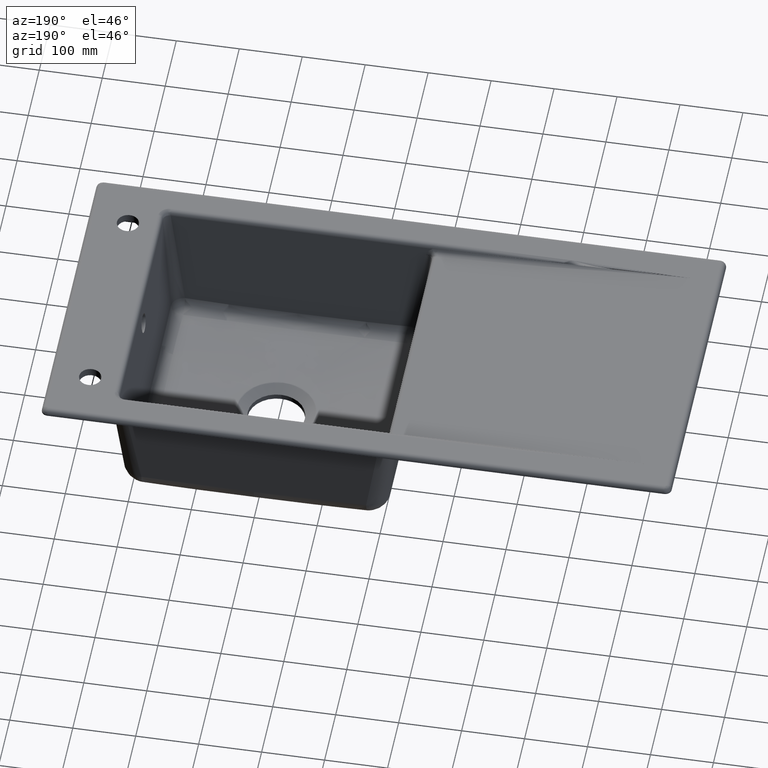
[diagram: clean part render]
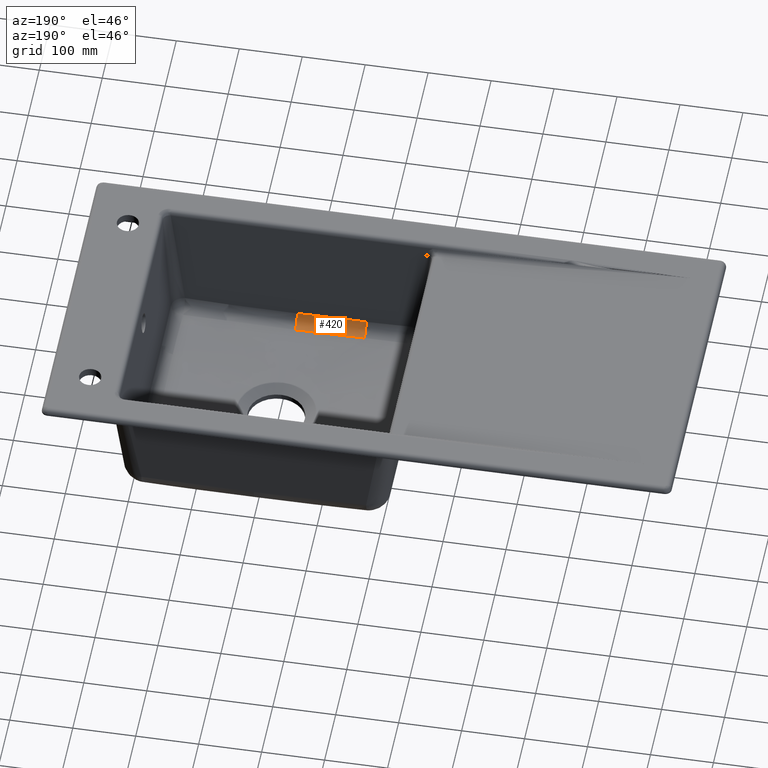
[diagram: same view with one face highlighted and labeled with its STEP entity id]
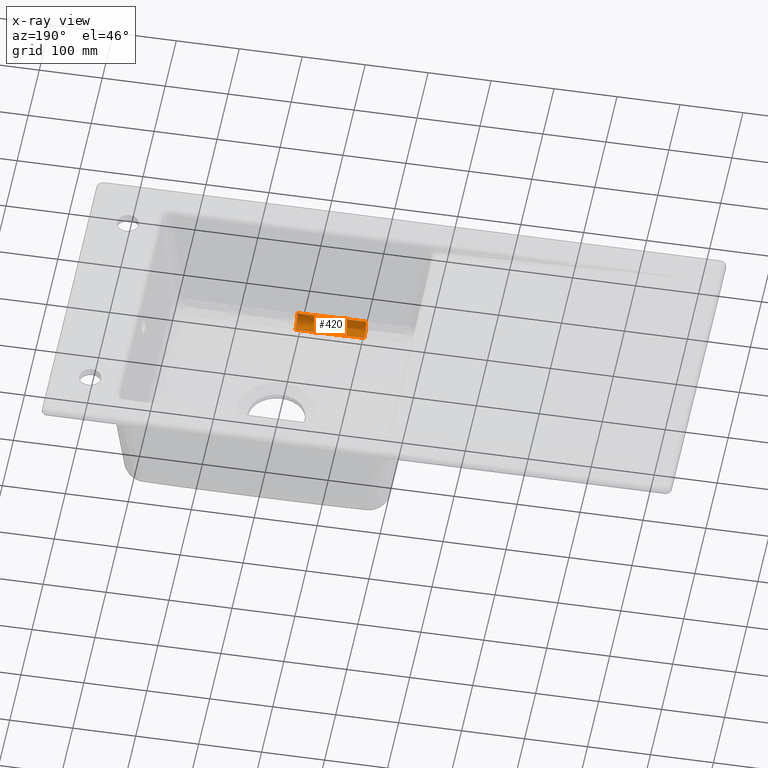
[diagram: x-ray of the same camera — body ghosted, the highlighted face saturated]
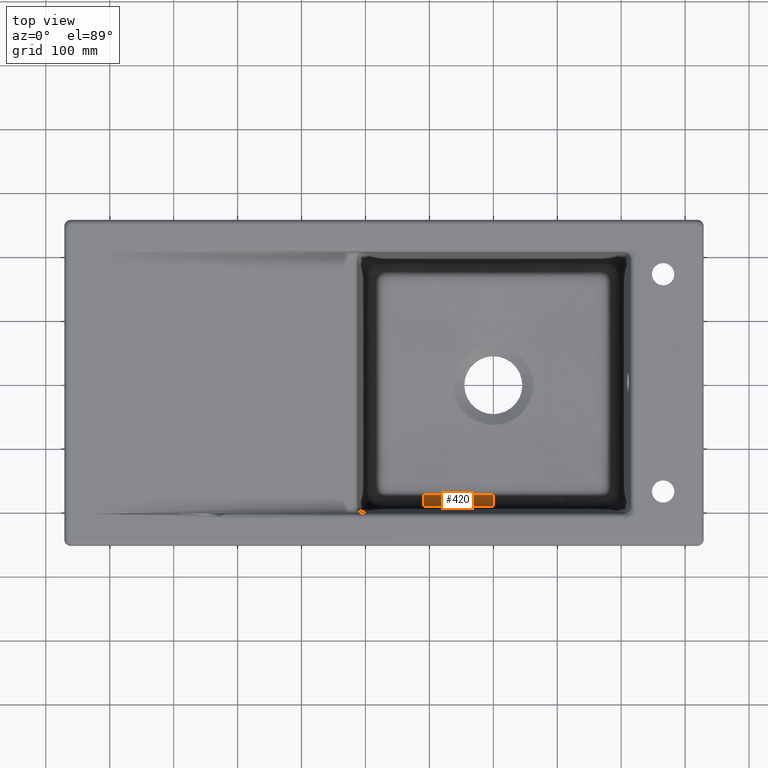
[diagram: same view with one face highlighted and labeled with its STEP entity id]
A machine part, auxiliary view. The second image highlights one B-rep face of the part: STEP entity #420.
The next image is the same camera in x-ray: the body ghosted, the highlighted face saturated — about 0% of this face is hidden behind the body in this view.
A second angle (top view) of the same face is appended — the face is thin or edge-on in the first view.
In plain terms, the highlighted face is a freeform B-spline surface patch.
Its self-contained STEP definition (entity closure, byte-faithful):
#111=(
BOUNDED_CURVE()
B_SPLINE_CURVE(2,(#17884,#17885,#17886),.UNSPECIFIED.,.F.,.F.)
B_SPLINE_CURVE_WITH_KNOTS((3,3),(0.,1.),.UNSPECIFIED.)
CURVE()
GEOMETRIC_REPRESENTATION_ITEM()
RATIONAL_B_SPLINE_CURVE((1.,0.770891270915629,1.))
REPRESENTATION_ITEM('')
);
#112=(
BOUNDED_CURVE()
B_SPLINE_CURVE(2,(#17976,#17977,#17978),.UNSPECIFIED.,.F.,.F.)
B_SPLINE_CURVE_WITH_KNOTS((3,3),(0.,1.),.UNSPECIFIED.)
CURVE()
GEOMETRIC_REPRESENTATION_ITEM()
RATIONAL_B_SPLINE_CURVE((1.,0.762222741133685,1.))
REPRESENTATION_ITEM('')
);
#156=(
BOUNDED_SURFACE()
B_SPLINE_SURFACE(3,2,((#17979,#17980,#17981),(#17982,#17983,#17984),(#17985,
#17986,#17987),(#17988,#17989,#17990),(#17991,#17992,#17993),(#17994,#17995,
#17996),(#17997,#17998,#17999),(#18000,#18001,#18002),(#18003,#18004,#18005),
(#18006,#18007,#18008)),.UNSPECIFIED.,.F.,.F.,.F.)
B_SPLINE_SURFACE_WITH_KNOTS((4,2,2,2,4),(3,3),(0.,0.5,0.75,0.875,1.),(0.,
1.),.UNSPECIFIED.)
GEOMETRIC_REPRESENTATION_ITEM()
RATIONAL_B_SPLINE_SURFACE(((1.,0.762222741133685,1.),(1.,0.762170805756783,
1.),(1.,0.762953594875179,1.),(1.,0.765395383301167,1.),(1.,0.766404312278564,
1.),(1.,0.768040028583703,1.),(1.,0.768605045687652,1.),(1.,0.769742200183421,
1.),(1.,0.770314258682702,1.),(1.,0.770874282847564,1.)))
REPRESENTATION_ITEM('')
SURFACE()
);
#420=ADVANCED_FACE('',(#658),#156,.F.);
#658=FACE_OUTER_BOUND('',#863,.T.);
#863=EDGE_LOOP('',(#1868,#1869,#1870,#1871));
#1198=B_SPLINE_CURVE_WITH_KNOTS('',3,(#16471,#16472,#16473,#16474,#16475,
#16476,#16477,#16478,#16479,#16480,#16481,#16482,#16483,#16484),
 .UNSPECIFIED.,.F.,.F.,(4,2,2,2,2,2,4),(0.,0.250000000000001,0.375000000000001,
0.437500000000001,0.468750000000001,0.500000000000001,1.),.UNSPECIFIED.);
#1210=B_SPLINE_CURVE_WITH_KNOTS('',3,(#17965,#17966,#17967,#17968,#17969,
#17970,#17971,#17972,#17973,#17974),.UNSPECIFIED.,.F.,.F.,(4,2,2,2,4),(0.,
0.124991619123339,0.249992816391434,0.499995210927623,1.),.UNSPECIFIED.);
#1868=ORIENTED_EDGE('',*,*,#2940,.F.);
#1869=ORIENTED_EDGE('',*,*,#2941,.T.);
#1870=ORIENTED_EDGE('',*,*,#2942,.T.);
#1871=ORIENTED_EDGE('',*,*,#2922,.F.);
#2509=VERTEX_POINT('',#16061);
#2512=VERTEX_POINT('',#16436);
#2519=VERTEX_POINT('',#17883);
#2520=VERTEX_POINT('',#17975);
#2922=EDGE_CURVE('',#2509,#2512,#1198,.T.);
#2940=EDGE_CURVE('',#2519,#2509,#111,.T.);
#2941=EDGE_CURVE('',#2519,#2520,#1210,.T.);
#2942=EDGE_CURVE('',#2520,#2512,#112,.T.);
#16061=CARTESIAN_POINT('',(-109.362211473929,-171.802772814069,-193.232335720157));
#16436=CARTESIAN_POINT('',(-3.03444743359847E-7,-171.219575415851,-193.805016417305));
#16471=CARTESIAN_POINT('',(-109.36172380389,-171.802246613298,-193.232277846092));
#16472=CARTESIAN_POINT('',(-99.1108620484148,-171.714633403856,-193.342564651983));
#16473=CARTESIAN_POINT('',(-89.5736461433218,-171.632894239048,-193.427975375961));
#16474=CARTESIAN_POINT('',(-76.1063011582472,-171.525313937772,-193.531625879869));
#16475=CARTESIAN_POINT('',(-71.7046535722678,-171.49160480548,-193.56242867592));
#16476=CARTESIAN_POINT('',(-65.2280649636331,-171.44508603395,-193.603750952713));
#16477=CARTESIAN_POINT('',(-63.0901881466911,-171.430260809346,-193.616709054064));
#16478=CARTESIAN_POINT('',(-59.9142323907079,-171.409206402015,-193.634994247608));
#16479=CARTESIAN_POINT('',(-58.8607240033125,-171.402385905498,-193.640897181396));
#16480=CARTESIAN_POINT('',(-56.7638942767562,-171.389171876352,-193.652329177969));
#16481=CARTESIAN_POINT('',(-55.7591431873256,-171.383007278351,-193.657659614992));
#16482=CARTESIAN_POINT('',(-37.4527431842186,-171.274349765386,-193.751931859781));
#16483=CARTESIAN_POINT('',(-19.3383049856921,-171.21958314523,-193.805016421753));
#16484=CARTESIAN_POINT('',(3.17644880286255E-26,-171.219575415851,-193.805016417305));
#17883=CARTESIAN_POINT('',(-109.165719874772,-189.682379415292,-175.081204434477));
#17884=CARTESIAN_POINT('',(-109.166308134746,-189.682366853199,-175.081348022421));
#17885=CARTESIAN_POINT('',(-109.331514668743,-188.242149831373,-191.543103909213));
#17886=CARTESIAN_POINT('',(-109.362663816067,-171.803292218627,-193.232457413849));
#17965=CARTESIAN_POINT('',(-109.165152722915,-189.682392003452,-175.081060553747));
#17966=CARTESIAN_POINT('',(-104.61706218334,-189.678424760205,-175.126406351563));
#17967=CARTESIAN_POINT('',(-100.068943697572,-189.674754744582,-175.168354822073));
#17968=CARTESIAN_POINT('',(-90.9723055230102,-189.667974609794,-175.245852117318));
#17969=CARTESIAN_POINT('',(-86.4237858504632,-189.664864331064,-175.281402765888));
#17970=CARTESIAN_POINT('',(-72.7781529303655,-189.656319413105,-175.379071625075));
#17971=CARTESIAN_POINT('',(-63.6809689556162,-189.651664362787,-175.432279093682));
#17972=CARTESIAN_POINT('',(-36.3893062669766,-189.640463370945,-175.560307016287));
#17973=CARTESIAN_POINT('',(-18.1946466464736,-189.636554779906,-175.604982416288));
#17974=CARTESIAN_POINT('',(-6.06889424921526E-7,-189.636554828712,-175.604981858434));
#17975=CARTESIAN_POINT('',(-4.04593000908561E-7,-189.636554828713,-175.604981858434));
#17976=CARTESIAN_POINT('',(-6.06889424921526E-7,-189.636554828712,-175.604981858434));
#17977=CARTESIAN_POINT('',(-8.45945426197653E-8,-188.156221010031,-192.525274831505));
#17978=CARTESIAN_POINT('',(0.,-171.219575415851,-193.805016417305));
#17979=CARTESIAN_POINT('',(-6.06889424921526E-7,-189.636554828712,-175.604981858434));
#17980=CARTESIAN_POINT('',(-8.45945426197653E-8,-188.156221010031,-192.525274831505));
#17981=CARTESIAN_POINT('',(0.,-171.219575415851,-193.805016417305));
#17982=CARTESIAN_POINT('',(-18.1946466464736,-189.636554779906,-175.604982416288));
#17983=CARTESIAN_POINT('',(-18.2249189012666,-188.156221220129,-192.525272488106));
#17984=CARTESIAN_POINT('',(-18.2283796398657,-171.219578747765,-193.805016720251));
#17985=CARTESIAN_POINT('',(-36.3893062669766,-189.640463370945,-175.560307016287));
#17986=CARTESIAN_POINT('',(-36.4038769942351,-188.163494376651,-192.442139887777));
#17987=CARTESIAN_POINT('',(-36.4513987461037,-171.268420609296,-193.757078269861));
#17988=CARTESIAN_POINT('',(-63.6809689556162,-189.651664362787,-175.432279093682));
#17989=CARTESIAN_POINT('',(-63.7636449542131,-188.186032044229,-192.184533142875));
#17990=CARTESIAN_POINT('',(-63.7891556147331,-171.430662208336,-193.61631265605));
#17991=CARTESIAN_POINT('',(-72.7781529303655,-189.656319413105,-175.379071625075));
#17992=CARTESIAN_POINT('',(-72.8709016245986,-188.195350415112,-192.078023698244));
#17993=CARTESIAN_POINT('',(-72.9022910526595,-171.497830792474,-193.557624983068));
#17994=CARTESIAN_POINT('',(-86.4237858504632,-189.664864331064,-175.281402765888));
#17995=CARTESIAN_POINT('',(-86.5477266886842,-188.211471142911,-191.893762916282));
#17996=CARTESIAN_POINT('',(-86.5738111387823,-171.608026335062,-193.45041554963));
#17997=CARTESIAN_POINT('',(-90.9723055230102,-189.667974609794,-175.245852117318));
#17998=CARTESIAN_POINT('',(-91.103465083918,-188.217192530631,-191.828367152448));
#17999=CARTESIAN_POINT('',(-91.1312402964985,-171.646294396808,-193.411470895574));
#18000=CARTESIAN_POINT('',(-100.069292223255,-189.674755004354,-175.168351852866));
#18001=CARTESIAN_POINT('',(-100.215587116243,-188.229227268589,-191.69080948735));
#18002=CARTESIAN_POINT('',(-100.246627224475,-171.723932675679,-193.326917653514));
#18003=CARTESIAN_POINT('',(-104.61775923067,-189.678425322675,-175.126399922497));
#18004=CARTESIAN_POINT('',(-104.772054651698,-188.234728615469,-191.627928788836));
#18005=CARTESIAN_POINT('',(-104.804717733417,-171.752285946642,-193.282437093203));
#18006=CARTESIAN_POINT('',(-109.166198287485,-189.68239291549,-175.081050129102));
#18007=CARTESIAN_POINT('',(-109.331593623833,-188.242097825037,-191.543698344397));
#18008=CARTESIAN_POINT('',(-109.362769705274,-171.80225726198,-193.232266417841));